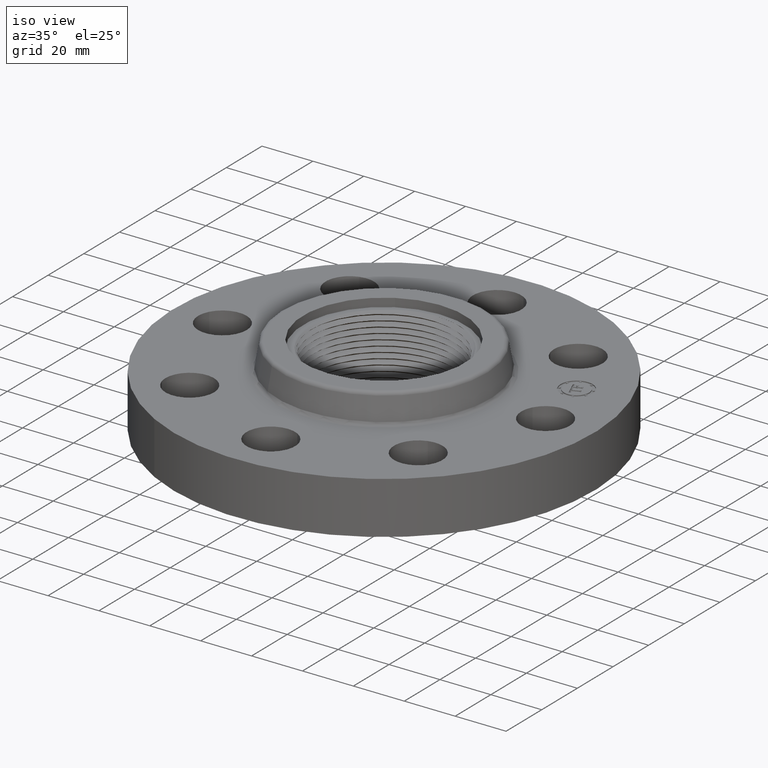
[diagram: clean part render]
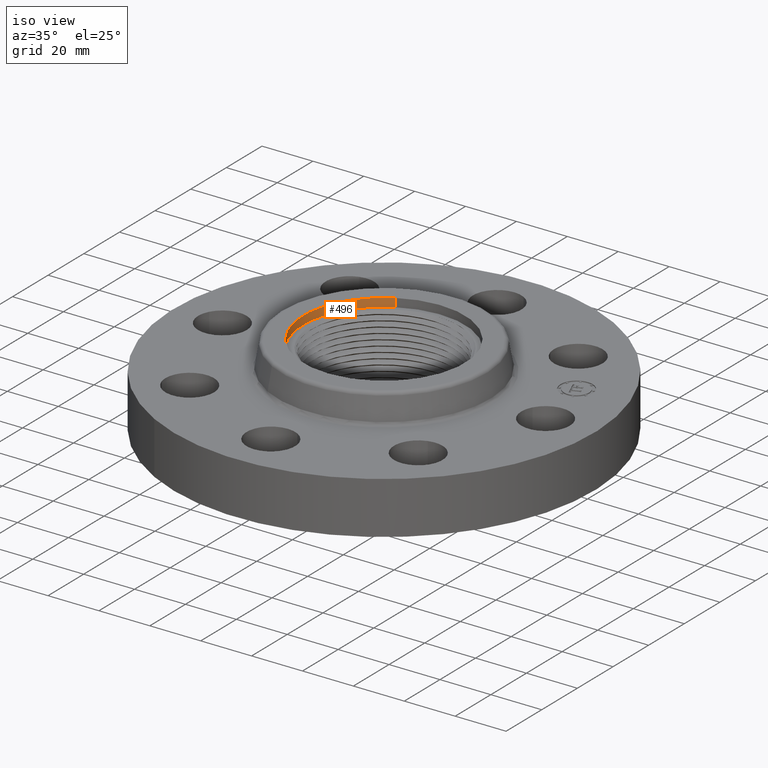
[diagram: same view with one face highlighted and labeled with its STEP entity id]
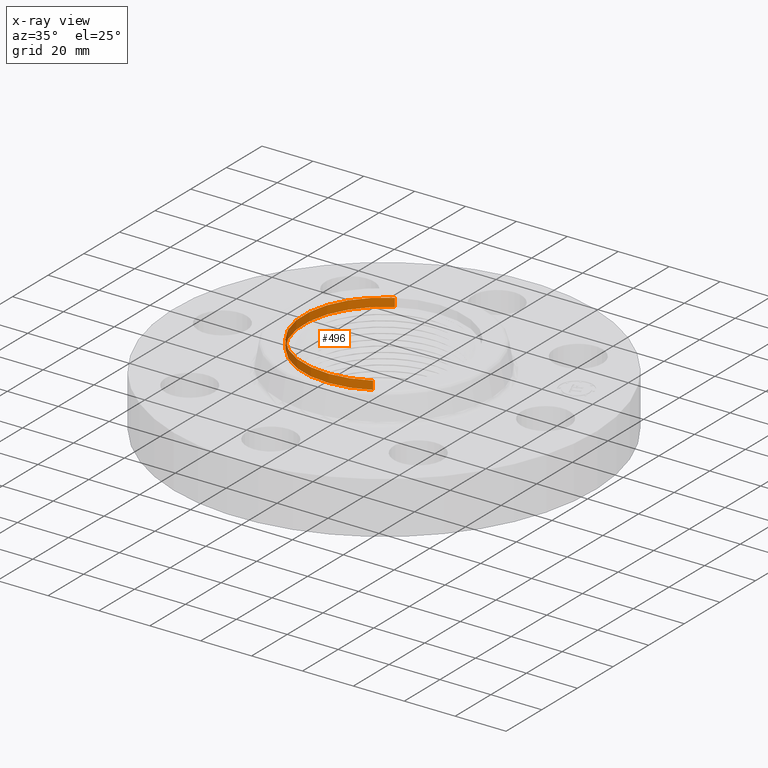
[diagram: x-ray of the same camera — body ghosted, the highlighted face saturated]
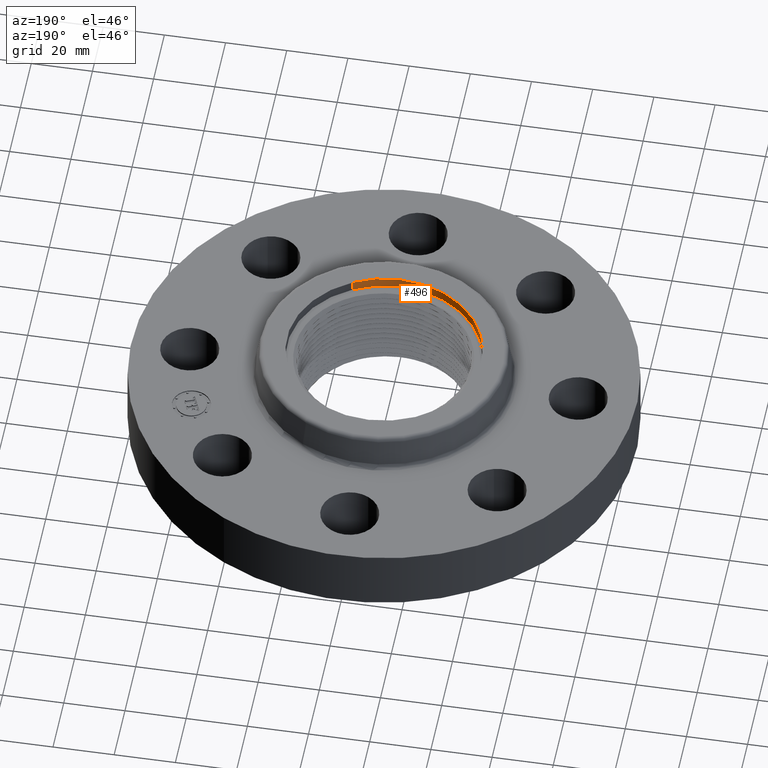
[diagram: same view with one face highlighted and labeled with its STEP entity id]
A machine part, iso view. The second image highlights one B-rep face of the part: STEP entity #496.
The next image is the same camera in x-ray: the body ghosted, the highlighted face saturated — about 0% of this face is hidden behind the body in this view.
A second angle (auxiliary view) of the same face is appended — the face is thin or edge-on in the first view.
In plain terms, the highlighted cylindrical surface (partial cylindrical patch) has radius 31.75 mm, axis along (0, 0, 1).
Its self-contained STEP definition (entity closure, byte-faithful):
#42=AXIS2_PLACEMENT_3D('Circle Axis2P3D',#40,#41,$) ;
#457=AXIS2_PLACEMENT_3D('Cylinder Axis2P3D',#454,#455,#456) ;
#487=AXIS2_PLACEMENT_3D('Circle Axis2P3D',#485,#486,$) ;
#40=CARTESIAN_POINT('Axis2P3D Location',(0.,0.,1.12)) ;
#44=CARTESIAN_POINT('Vertex',(-0.599281923258,1.09697820237,1.12)) ;
#46=CARTESIAN_POINT('Vertex',(0.599281923258,-1.09697820237,1.12)) ;
#454=CARTESIAN_POINT('Axis2P3D Location',(0.,0.,1.12)) ;
#463=CARTESIAN_POINT('Vertex',(-0.599281923258,1.09697820237,1.25000000001)) ;
#465=CARTESIAN_POINT('Vertex',(0.599281923258,-1.09697820237,1.25000000001)) ;
#468=CARTESIAN_POINT('Line Origine',(-0.599281923258,1.09697820237,1.185)) ;
#473=CARTESIAN_POINT('Line Origine',(0.599281923258,-1.09697820237,1.185)) ;
#485=CARTESIAN_POINT('Axis2P3D Location',(0.,0.,1.25000000001)) ;
#41=DIRECTION('Axis2P3D Direction',(0.,0.,0.0393700787402)) ;
#455=DIRECTION('Axis2P3D Direction',(0.,0.,0.0393700787402)) ;
#456=DIRECTION('Axis2P3D XDirection',(-0.0188750212049,0.0345504945626,0.)) ;
#469=DIRECTION('Vector Direction',(0.,0.,0.0393700787402)) ;
#474=DIRECTION('Vector Direction',(0.,0.,0.0393700787402)) ;
#486=DIRECTION('Axis2P3D Direction',(0.,0.,0.0393700787402)) ;
#470=VECTOR('Line Direction',#469,0.0393700787402) ;
#475=VECTOR('Line Direction',#474,0.0393700787402) ;
#491=ORIENTED_EDGE('',*,*,#489,.F.) ;
#492=ORIENTED_EDGE('',*,*,#477,.F.) ;
#493=ORIENTED_EDGE('',*,*,#48,.F.) ;
#494=ORIENTED_EDGE('',*,*,#472,.T.) ;
#496=ADVANCED_FACE('PartBody',(#495),#458,.F.) ;
#43=CIRCLE('generated circle',#42,1.25000000001) ;
#488=CIRCLE('generated circle',#487,1.25000000001) ;
#458=CYLINDRICAL_SURFACE('generated cylinder',#457,1.25000000001) ;
#48=EDGE_CURVE('',#45,#47,#43,.T.) ;
#472=EDGE_CURVE('',#45,#464,#471,.T.) ;
#477=EDGE_CURVE('',#47,#466,#476,.T.) ;
#489=EDGE_CURVE('',#466,#464,#488,.F.) ;
#490=EDGE_LOOP('',(#491,#492,#493,#494)) ;
#495=FACE_OUTER_BOUND('',#490,.T.) ;
#471=LINE('Line',#468,#470) ;
#476=LINE('Line',#473,#475) ;
#45=VERTEX_POINT('',#44) ;
#47=VERTEX_POINT('',#46) ;
#464=VERTEX_POINT('',#463) ;
#466=VERTEX_POINT('',#465) ;